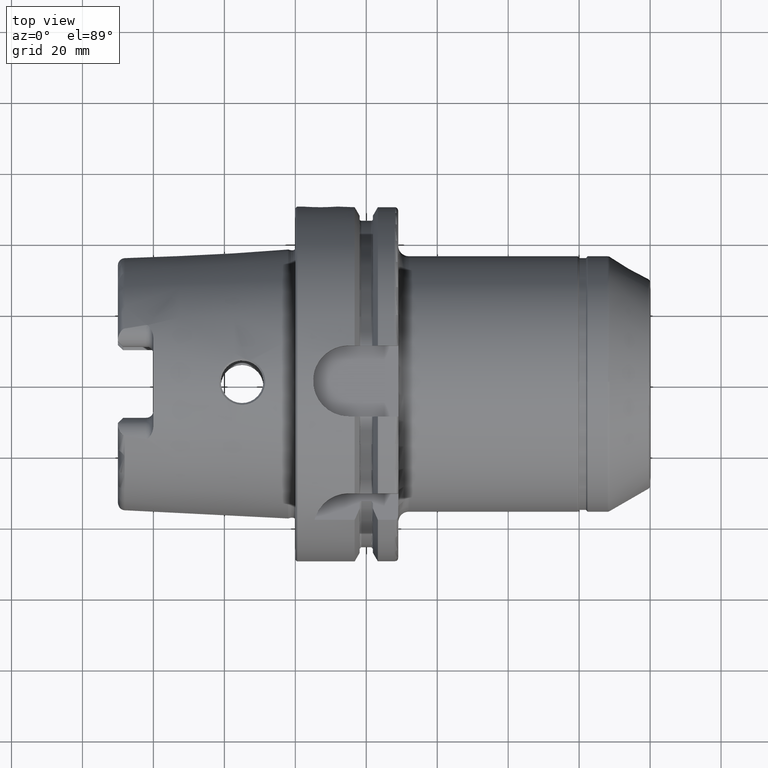
[diagram: clean part render]
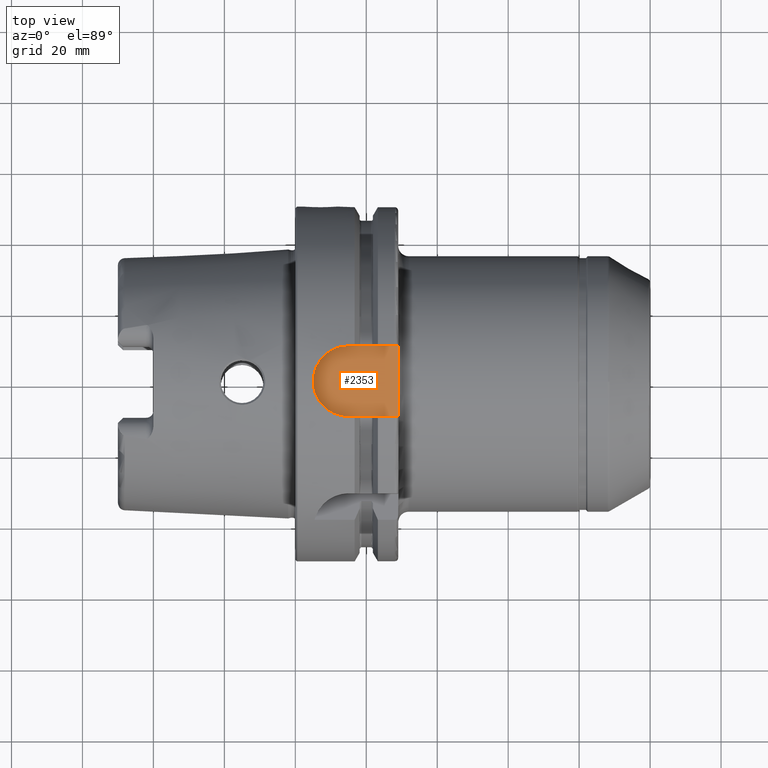
[diagram: same view with one face highlighted and labeled with its STEP entity id]
A machine part, top view. The second image highlights one B-rep face of the part: STEP entity #2353.
In plain terms, the highlighted planar face has unit normal (0, 0, 1).
Its self-contained STEP definition (entity closure, byte-faithful):
#129=PLANE('',#2631);
#170=LINE('',#3620,#279);
#245=LINE('',#4894,#354);
#248=LINE('',#4901,#357);
#279=VECTOR('',#2885,10.);
#354=VECTOR('',#3244,10.);
#357=VECTOR('',#3253,10.);
#491=FACE_OUTER_BOUND('',#622,.T.);
#622=EDGE_LOOP('',(#2002,#2003,#2004,#2005));
#800=CIRCLE('',#2629,10.);
#912=VERTEX_POINT('',#3617);
#913=VERTEX_POINT('',#3619);
#1074=VERTEX_POINT('',#4893);
#1075=VERTEX_POINT('',#4897);
#1183=EDGE_CURVE('',#912,#913,#170,.T.);
#1405=EDGE_CURVE('',#1074,#913,#245,.T.);
#1407=EDGE_CURVE('',#1075,#1074,#800,.T.);
#1409=EDGE_CURVE('',#912,#1075,#248,.T.);
#2002=ORIENTED_EDGE('',*,*,#1409,.T.);
#2003=ORIENTED_EDGE('',*,*,#1407,.T.);
#2004=ORIENTED_EDGE('',*,*,#1405,.T.);
#2005=ORIENTED_EDGE('',*,*,#1183,.F.);
#2353=ADVANCED_FACE('',(#491),#129,.T.);
#2629=AXIS2_PLACEMENT_3D('',#4898,#3248,#3249);
#2631=AXIS2_PLACEMENT_3D('',#4902,#3254,#3255);
#2885=DIRECTION('',(0.,-1.,0.));
#3244=DIRECTION('',(1.,7.93016446160826E-17,0.));
#3248=DIRECTION('center_axis',(0.,0.,1.));
#3249=DIRECTION('ref_axis',(0.,1.,0.));
#3253=DIRECTION('',(-1.,0.,0.));
#3254=DIRECTION('center_axis',(0.,0.,1.));
#3255=DIRECTION('ref_axis',(1.,0.,0.));
#3617=CARTESIAN_POINT('',(29.,10.,44.));
#3619=CARTESIAN_POINT('',(29.,-10.,44.));
#3620=CARTESIAN_POINT('',(29.,0.,44.));
#4893=CARTESIAN_POINT('',(15.,-10.,44.));
#4894=CARTESIAN_POINT('',(15.,-10.,44.));
#4897=CARTESIAN_POINT('',(15.,10.,44.));
#4898=CARTESIAN_POINT('Origin',(15.,0.,44.));
#4901=CARTESIAN_POINT('',(29.,10.,44.));
#4902=CARTESIAN_POINT('Origin',(17.,0.,44.));